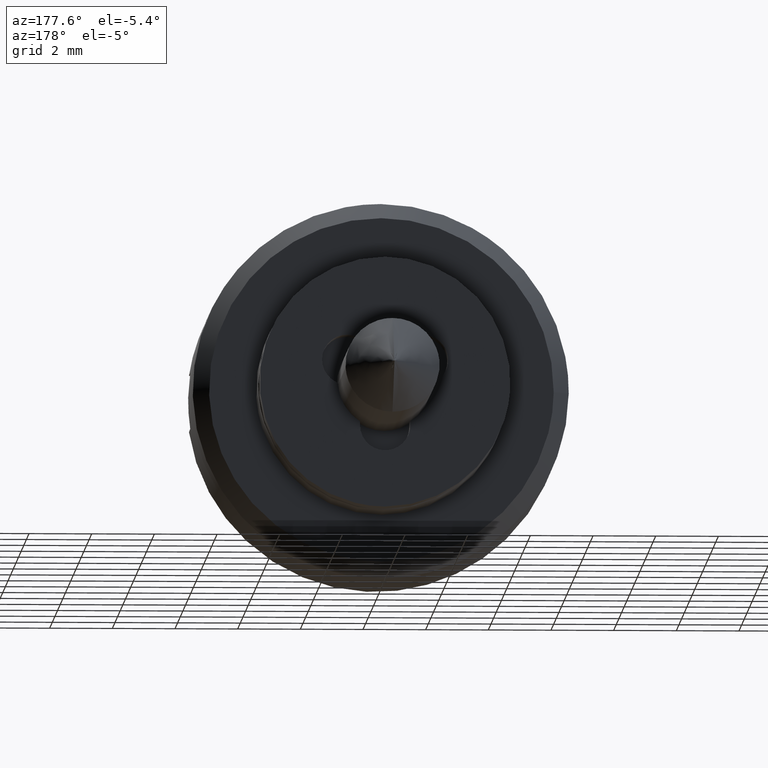
[diagram: clean part render]
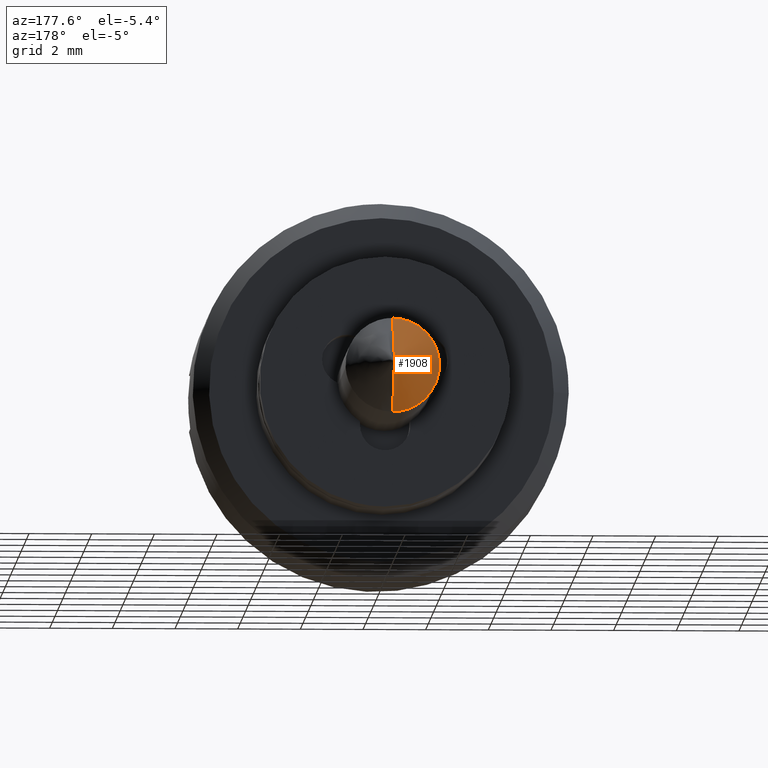
[diagram: same view with one face highlighted and labeled with its STEP entity id]
A machine part, auxiliary view. The second image highlights one B-rep face of the part: STEP entity #1908.
In plain terms, the highlighted face is a freeform B-spline surface patch.
Its self-contained STEP definition (entity closure, byte-faithful):
#859=CARTESIAN_POINT('',(6.500000000000002,1.489514368187416,0.177050690376510));
#860=VERTEX_POINT('',#859);
#861=CARTESIAN_POINT('',(6.500000000000009,0.0,-1.500000000000010));
#862=VERTEX_POINT('',#861);
#863=CARTESIAN_POINT('',(6.500000000000002,1.489514368187416,0.177050690376510));
#864=CARTESIAN_POINT('',(6.500000000000000,1.500000000000000,0.088835510874848));
#865=CARTESIAN_POINT('',(6.500000000000000,1.500000000000000,0.0));
#866=CARTESIAN_POINT('',(6.500000000000001,1.500000000000000,-1.500000000000000));
#867=CARTESIAN_POINT('',(6.500000000000000,0.0,-1.500000000000000));
#875=(BOUNDED_CURVE()B_SPLINE_CURVE(2,(#863,#864,#865,#866,#867),.UNSPECIFIED.,.F.,.U.)B_SPLINE_CURVE_WITH_KNOTS((3,2,3),(0.459125247301036,0.500000000000000,1.0),.UNSPECIFIED.)CURVE()GEOMETRIC_REPRESENTATION_ITEM()RATIONAL_B_SPLINE_CURVE((0.956027048458593,0.976056124227593,1.0,0.707106781186548,1.0))REPRESENTATION_ITEM(''));
#876=EDGE_CURVE('',#860,#862,#875,.T.);
#958=CARTESIAN_POINT('',(6.500000000000009,0.0,1.500000000000010));
#959=VERTEX_POINT('',#958);
#960=CARTESIAN_POINT('',(6.500000000000000,0.0,1.500000000000000));
#961=CARTESIAN_POINT('',(6.500000000000002,1.332262980780307,1.500000000000000));
#962=CARTESIAN_POINT('',(6.500000000000002,1.489514368187416,0.177050690376510));
#970=(BOUNDED_CURVE()B_SPLINE_CURVE(2,(#960,#961,#962),.UNSPECIFIED.,.F.,.U.)B_SPLINE_CURVE_WITH_KNOTS((3,3),(0.0,0.459125247301035),.UNSPECIFIED.)CURVE()GEOMETRIC_REPRESENTATION_ITEM()RATIONAL_B_SPLINE_CURVE((1.0,0.731050656958955,0.956027048458593))REPRESENTATION_ITEM(''));
#971=EDGE_CURVE('',#959,#860,#970,.T.);
#1779=CARTESIAN_POINT('',(8.0,0.0,0.0));
#1780=VERTEX_POINT('',#1779);
#1781=CARTESIAN_POINT('',(8.0,0.0,0.0));
#1782=CARTESIAN_POINT('',(6.500000000000009,0.0,1.500000000000010));
#1783=QUASI_UNIFORM_CURVE('',1,(#1781,#1782),.UNSPECIFIED.,.F.,.U.);
#1784=EDGE_CURVE('',#1780,#959,#1783,.T.);
#1788=CARTESIAN_POINT('',(8.0,0.0,0.0));
#1789=CARTESIAN_POINT('',(6.500000000000009,0.0,-1.500000000000010));
#1790=QUASI_UNIFORM_CURVE('',1,(#1788,#1789),.UNSPECIFIED.,.F.,.U.);
#1791=EDGE_CURVE('',#1780,#862,#1790,.T.);
#1884=CARTESIAN_POINT('',(8.0,0.0,0.0));
#1885=CARTESIAN_POINT('',(6.461562499999999,-0.013425229455779,-1.538378921014096));
#1886=CARTESIAN_POINT('',(8.0,0.0,0.0));
#1887=CARTESIAN_POINT('',(6.461562499999999,1.579612777350746,-1.552281153085149));
#1888=CARTESIAN_POINT('',(8.0,0.0,0.0));
#1889=CARTESIAN_POINT('',(6.461562499999999,1.537910315892144,0.040271598912396));
#1890=CARTESIAN_POINT('',(8.0,0.0,0.0));
#1891=CARTESIAN_POINT('',(6.461562499999999,1.496207854433543,1.632824350909941));
#1892=CARTESIAN_POINT('',(8.0,0.0,0.0));
#1893=CARTESIAN_POINT('',(6.461562499999999,-0.093919362540660,1.535568003947201));
#1901=(BOUNDED_SURFACE()B_SPLINE_SURFACE(1,2,((#1884,#1886,#1888,#1890,#1892),(#1885,#1887,#1889,#1891,#1893)),.UNSPECIFIED.,.F.,.F.,.U.)B_SPLINE_SURFACE_WITH_KNOTS((2,2),(3,2,3),(0.0,1.0),(0.0,1.0,2.0),.UNSPECIFIED.)GEOMETRIC_REPRESENTATION_ITEM()RATIONAL_B_SPLINE_SURFACE(((1.0,0.694658370458997,1.0,0.694658370458997,1.0),(1.0,0.694658370458997,1.0,0.694658370458997,1.0)))REPRESENTATION_ITEM('')SURFACE());
#1902=ORIENTED_EDGE('',*,*,#1791,.T.);
#1903=ORIENTED_EDGE('',*,*,#876,.F.);
#1904=ORIENTED_EDGE('',*,*,#971,.F.);
#1905=ORIENTED_EDGE('',*,*,#1784,.F.);
#1906=EDGE_LOOP('',(#1902,#1903,#1904,#1905));
#1907=FACE_OUTER_BOUND('',#1906,.T.);
#1908=ADVANCED_FACE('',(#1907),#1901,.T.);